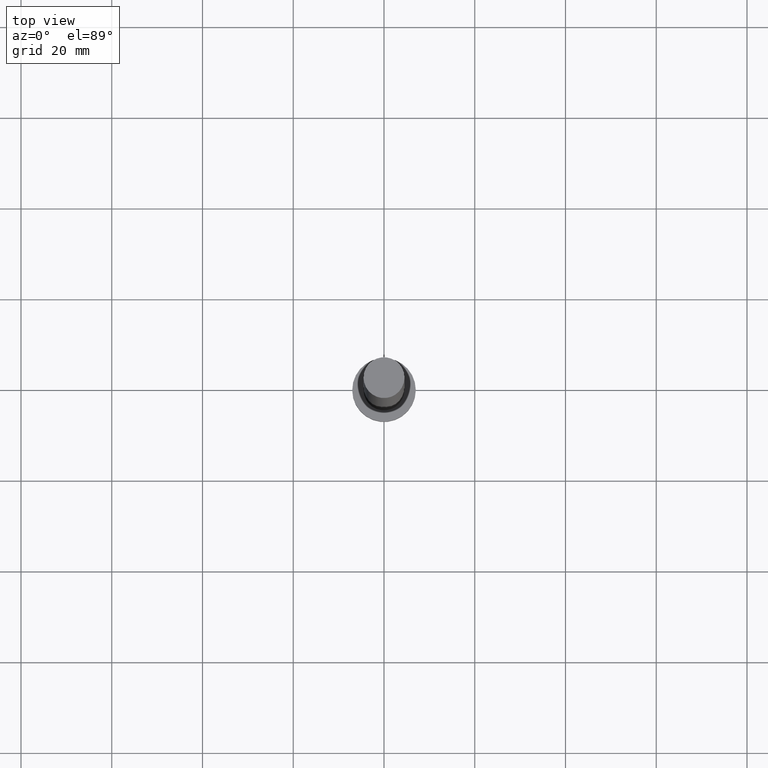
[diagram: clean part render]
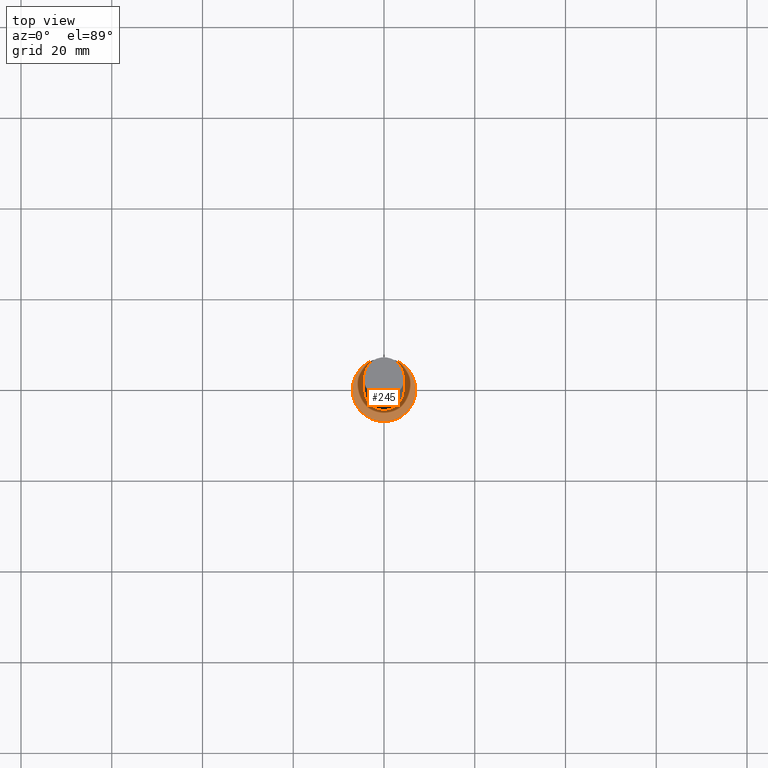
[diagram: same view with one face highlighted and labeled with its STEP entity id]
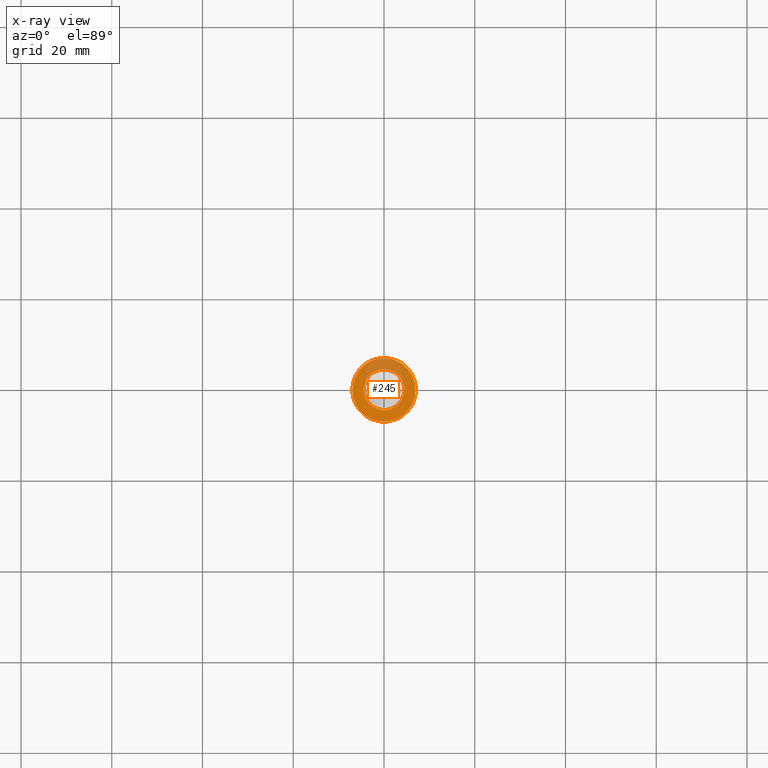
[diagram: x-ray of the same camera — body ghosted, the highlighted face saturated]
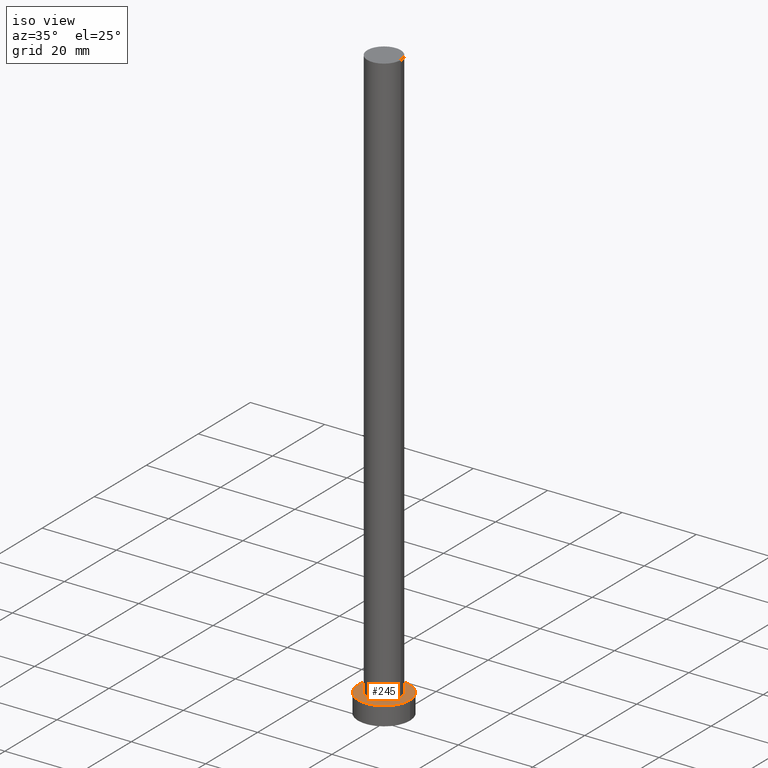
[diagram: same view with one face highlighted and labeled with its STEP entity id]
A machine part, top view. The second image highlights one B-rep face of the part: STEP entity #245.
The next image is the same camera in x-ray: the body ghosted, the highlighted face saturated — about 27% of this face is hidden behind the body in this view.
A second angle (iso view) of the same face is appended — the face is thin or edge-on in the first view.
In plain terms, the highlighted planar face has unit normal (0, 0, 1).
Its self-contained STEP definition (entity closure, byte-faithful):
#1 = CIRCLE ( 'NONE', #120, 7.000000000000000000 ) ;
#3 = DIRECTION ( 'NONE',  ( 1.000000000000000000, 0.000000000000000000, -0.000000000000000000 ) ) ;
#8 = EDGE_CURVE ( 'NONE', #94, #90, #1, .T. ) ;
#10 = AXIS2_PLACEMENT_3D ( 'NONE', #111, #164, #230 ) ;
#26 = VERTEX_POINT ( 'NONE', #159 ) ;
#60 = ORIENTED_EDGE ( 'NONE', *, *, #72, .F. ) ;
#64 = PLANE ( 'NONE',  #101 ) ;
#68 = CARTESIAN_POINT ( 'NONE',  ( 0.000000000000000000, 0.000000000000000000, 5.000000000000000000 ) ) ;
#72 = EDGE_CURVE ( 'NONE', #155, #26, #214, .T. ) ;
#81 = CIRCLE ( 'NONE', #207, 4.500000000000000888 ) ;
#86 = DIRECTION ( 'NONE',  ( 1.000000000000000000, 0.000000000000000000, 0.000000000000000000 ) ) ;
#90 = VERTEX_POINT ( 'NONE', #126 ) ;
#94 = VERTEX_POINT ( 'NONE', #210 ) ;
#101 = AXIS2_PLACEMENT_3D ( 'NONE', #153, #216, #3 ) ;
#106 = DIRECTION ( 'NONE',  ( 0.000000000000000000, 0.000000000000000000, 1.000000000000000000 ) ) ;
#111 = CARTESIAN_POINT ( 'NONE',  ( 0.000000000000000000, 0.000000000000000000, 5.000000000000000000 ) ) ;
#120 = AXIS2_PLACEMENT_3D ( 'NONE', #249, #139, #161 ) ;
#123 = CARTESIAN_POINT ( 'NONE',  ( 0.000000000000000000, 0.000000000000000000, 5.000000000000000000 ) ) ;
#126 = CARTESIAN_POINT ( 'NONE',  ( 7.000000000000000000, 8.572527594031473190E-16, 5.000000000000000000 ) ) ;
#131 = EDGE_CURVE ( 'NONE', #90, #94, #199, .T. ) ;
#139 = DIRECTION ( 'NONE',  ( 0.000000000000000000, 0.000000000000000000, 1.000000000000000000 ) ) ;
#150 = FACE_BOUND ( 'NONE', #237, .T. ) ;
#152 = EDGE_LOOP ( 'NONE', ( #220, #222 ) ) ;
#153 = CARTESIAN_POINT ( 'NONE',  ( 0.000000000000000000, 0.000000000000000000, 5.000000000000000000 ) ) ;
#155 = VERTEX_POINT ( 'NONE', #201 ) ;
#159 = CARTESIAN_POINT ( 'NONE',  ( -4.500000000000000888, 0.000000000000000000, 5.000000000000000000 ) ) ;
#161 = DIRECTION ( 'NONE',  ( 1.000000000000000000, 0.000000000000000000, 0.000000000000000000 ) ) ;
#162 = DIRECTION ( 'NONE',  ( 0.000000000000000000, 0.000000000000000000, 1.000000000000000000 ) ) ;
#164 = DIRECTION ( 'NONE',  ( 0.000000000000000000, 0.000000000000000000, 1.000000000000000000 ) ) ;
#184 = AXIS2_PLACEMENT_3D ( 'NONE', #68, #162, #228 ) ;
#199 = CIRCLE ( 'NONE', #184, 7.000000000000000000 ) ;
#201 = CARTESIAN_POINT ( 'NONE',  ( 4.500000000000000888, 5.510910596163089556E-16, 5.000000000000000000 ) ) ;
#202 = ORIENTED_EDGE ( 'NONE', *, *, #223, .F. ) ;
#207 = AXIS2_PLACEMENT_3D ( 'NONE', #123, #106, #86 ) ;
#210 = CARTESIAN_POINT ( 'NONE',  ( -7.000000000000000000, 0.000000000000000000, 5.000000000000000000 ) ) ;
#214 = CIRCLE ( 'NONE', #10, 4.500000000000000888 ) ;
#216 = DIRECTION ( 'NONE',  ( 0.000000000000000000, 0.000000000000000000, 1.000000000000000000 ) ) ;
#220 = ORIENTED_EDGE ( 'NONE', *, *, #8, .T. ) ;
#222 = ORIENTED_EDGE ( 'NONE', *, *, #131, .T. ) ;
#223 = EDGE_CURVE ( 'NONE', #26, #155, #81, .T. ) ;
#228 = DIRECTION ( 'NONE',  ( 1.000000000000000000, 0.000000000000000000, 0.000000000000000000 ) ) ;
#230 = DIRECTION ( 'NONE',  ( 1.000000000000000000, 0.000000000000000000, 0.000000000000000000 ) ) ;
#235 = FACE_OUTER_BOUND ( 'NONE', #152, .T. ) ;
#237 = EDGE_LOOP ( 'NONE', ( #202, #60 ) ) ;
#245 = ADVANCED_FACE ( 'NONE', ( #150, #235 ), #64, .T. ) ;
#249 = CARTESIAN_POINT ( 'NONE',  ( 0.000000000000000000, 0.000000000000000000, 5.000000000000000000 ) ) ;